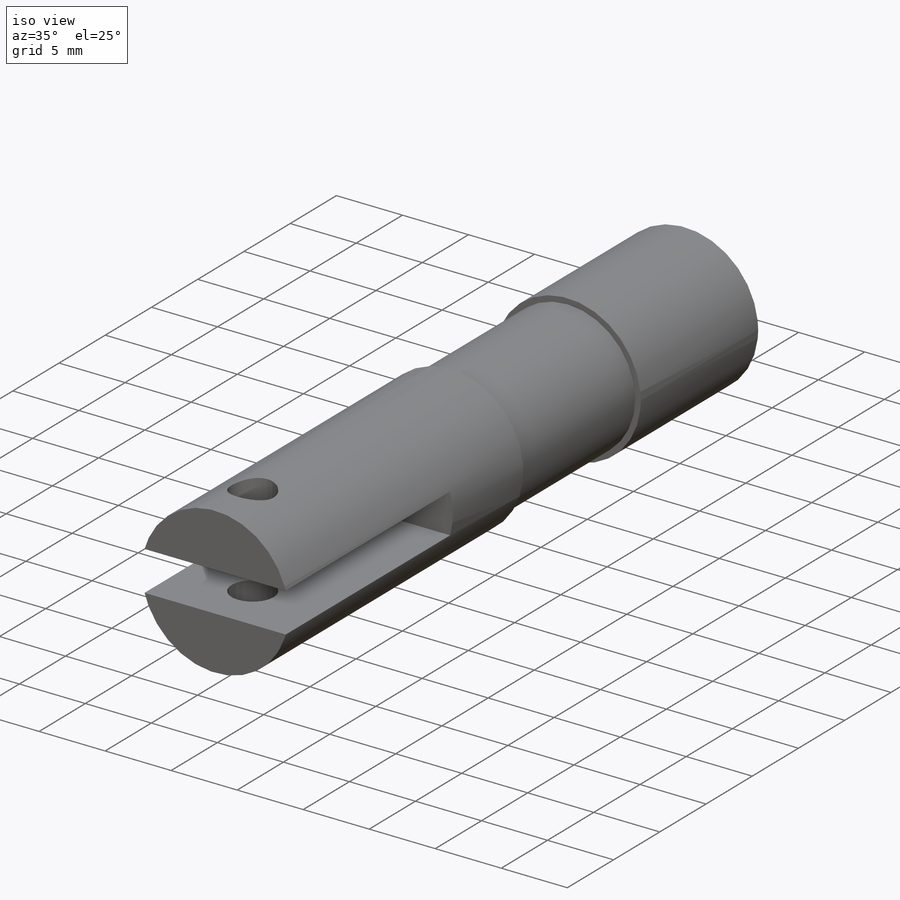
[diagram: iso view]
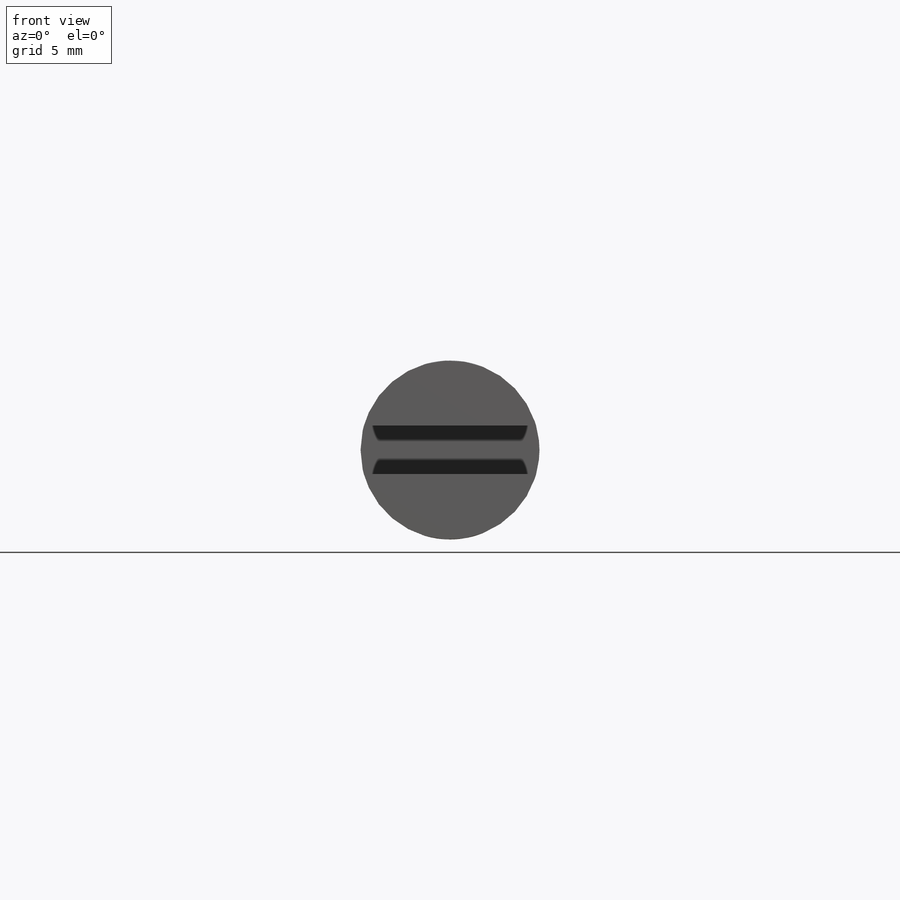
[diagram: front view]
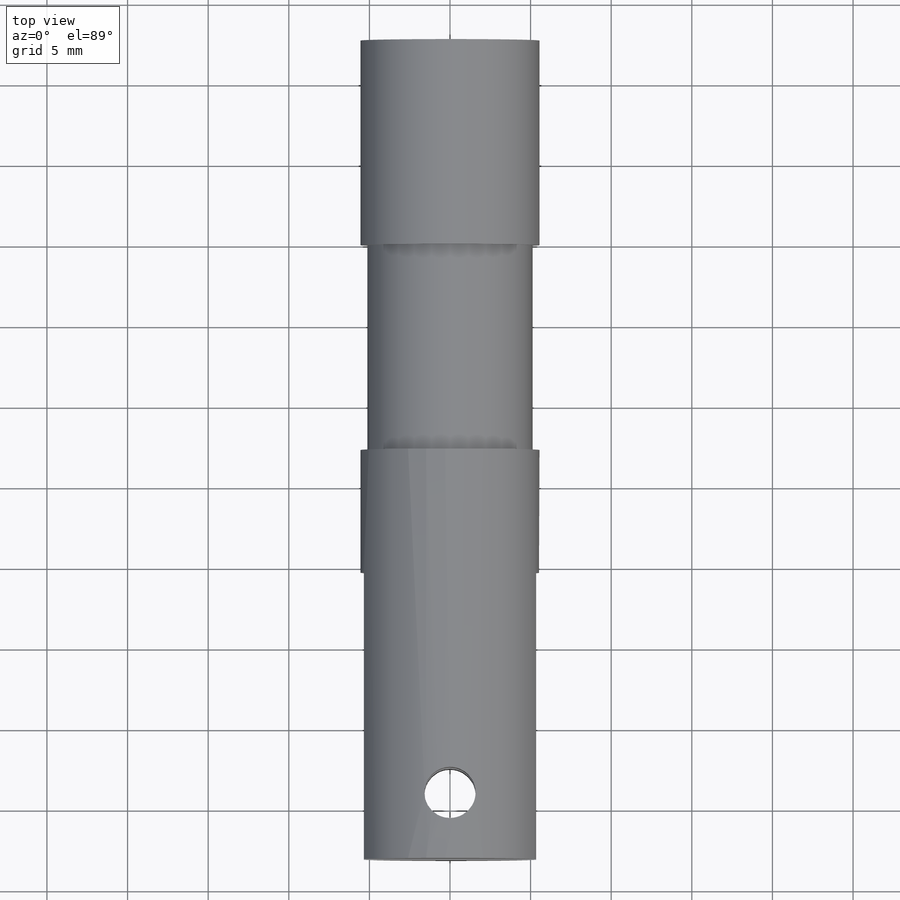
[diagram: top view]
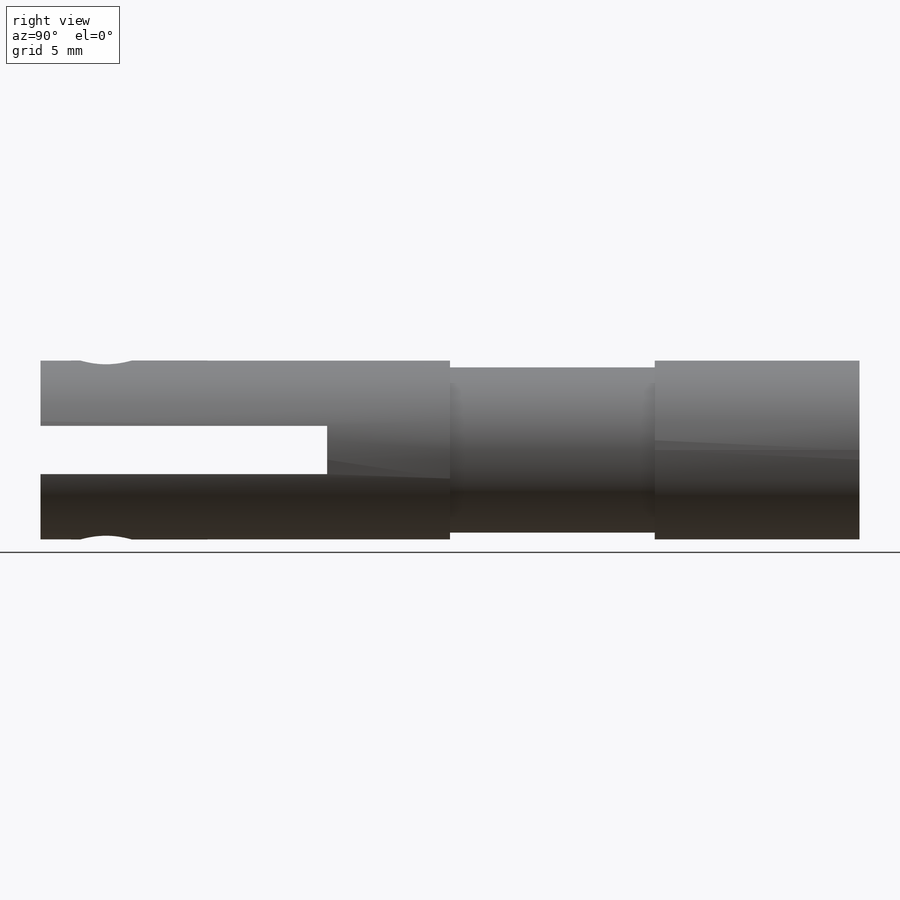
[diagram: right view]
SOLIDWORKS PART (.sldprt)
format: sldprt  version: not decoded by parser v0  size: 212,480 bytes
history: native  units: mm
features: sketch x6, cut_extrude x3, extrude x2, plane x2, material x1 (+13 scaffold rows collapsed)
feature tree (27):
  scaffold x13  (default folders/planes/origin — collapsed)
  material  "Material <not specified>"
  sketch  "Sketch1"  dims[D1=4.0mm]
  extrude  "Boss-Extrude1"  Depth=38.1mm
  plane  "Plane1"  Offset=0mm
  sketch  "Sketch2"  dims[D1=1.5mm]
  cut_extrude  "Cut-Extrude1"  Depth=17.78mm
  plane  "Plane2"  Offset=0mm
  sketch  "Sketch3"  dims[D1=4.064mm]
  cut_extrude  "Cut-Extrude2"  Depth=10mm
  sketch  "Sketch4"  dims[D1=4.0mm]
  extrude  "Boss-Extrude4"  Depth=12.7mm
  sketch  "Sketch5"
  sketch  "Sketch6"
  cut_extrude  "Cut-Extrude4"  Depth=12.7mm
decode coverage: 9 of 11 modeling features carry decoded parameters
note: suppression state not decoded; provenance and decode notes live in map.json
